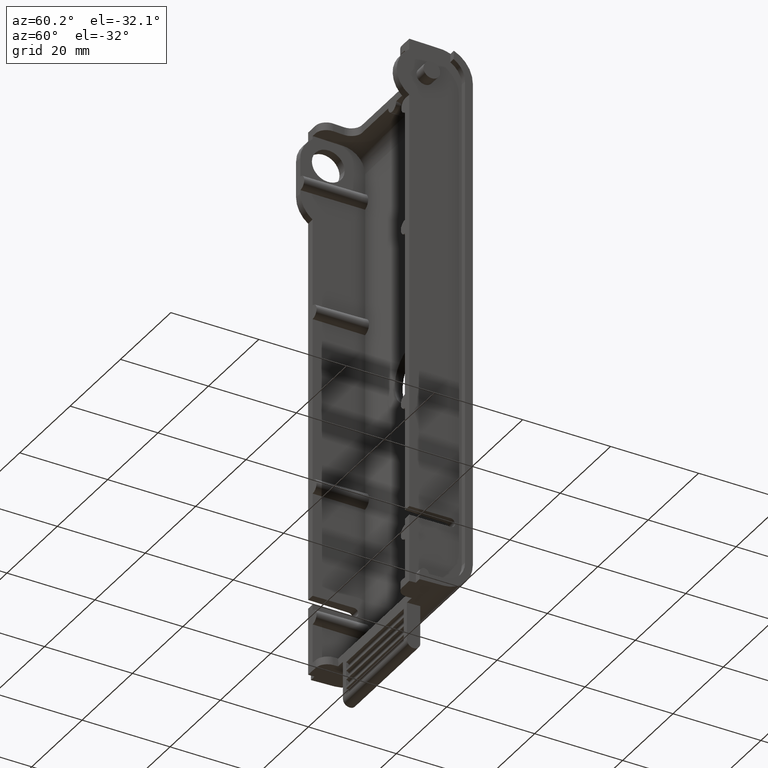
[diagram: clean part render]
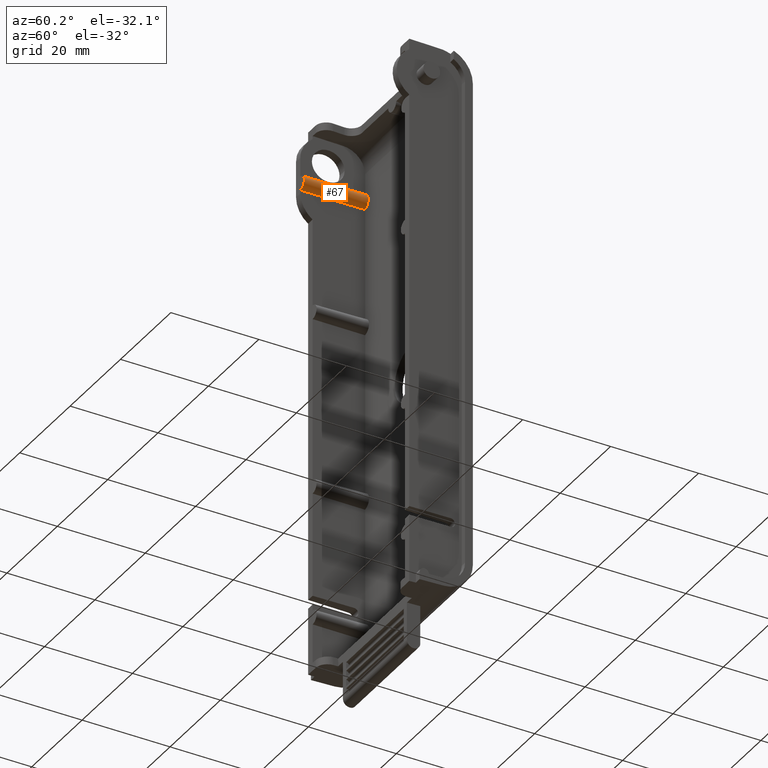
[diagram: same view with one face highlighted and labeled with its STEP entity id]
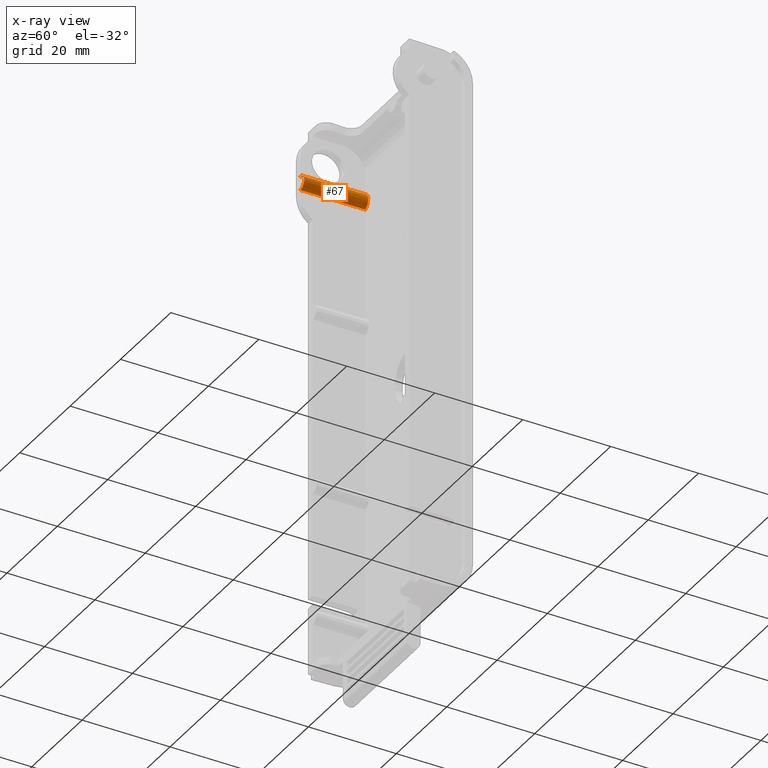
[diagram: x-ray of the same camera — body ghosted, the highlighted face saturated]
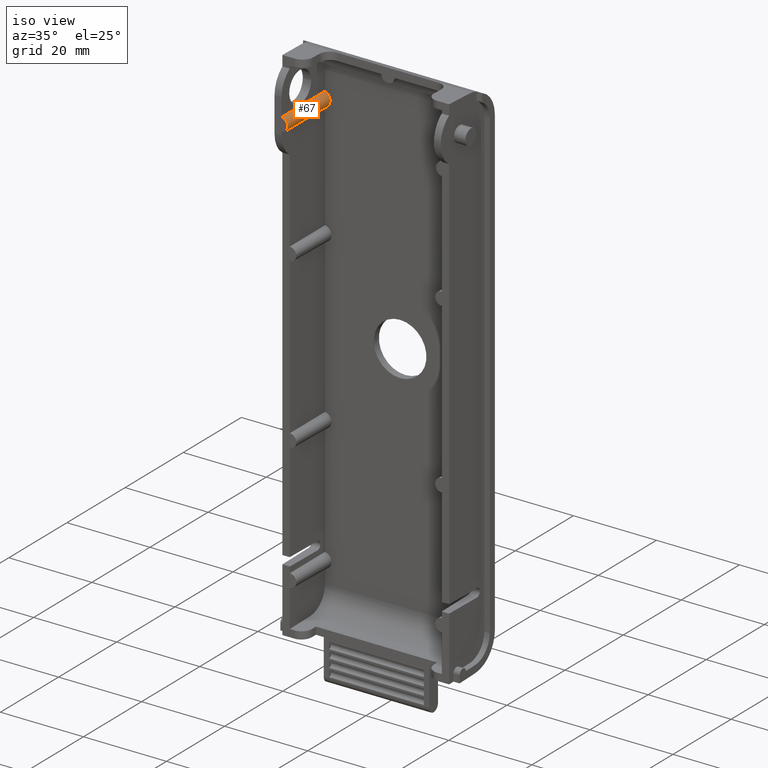
[diagram: same view with one face highlighted and labeled with its STEP entity id]
A machine part, auxiliary view. The second image highlights one B-rep face of the part: STEP entity #67.
The next image is the same camera in x-ray: the body ghosted, the highlighted face saturated — about 0% of this face is hidden behind the body in this view.
A second angle (iso view) of the same face is appended — the face is thin or edge-on in the first view.
In plain terms, the highlighted conical surface has half-angle 1 deg.
Its self-contained STEP definition (entity closure, byte-faithful):
#52 = ORIENTED_EDGE ( 'NONE', *, *, #597, .F. ) ;
#67 = ADVANCED_FACE ( 'NONE', ( #818 ), #1487, .T. ) ;
#249 = CARTESIAN_POINT ( 'NONE',  ( -0.7160159745057069800, 0.2655334032662460800, 2.017238102561494700 ) ) ;
#331 = DIRECTION ( 'NONE',  ( 0.9998476951563912700, 0.01745240643728349400, 0.0000000000000000000 ) ) ;
#433 = CIRCLE ( 'NONE', #2962, 0.06250000000000013900 ) ;
#597 = EDGE_CURVE ( 'NONE', #2536, #2922, #1199, .T. ) ;
#818 = FACE_OUTER_BOUND ( 'NONE', #2167, .T. ) ;
#898 = CARTESIAN_POINT ( 'NONE',  ( -0.7225418668505243500, -0.1083347187748126400, 1.887610721778530300 ) ) ;
#921 = CARTESIAN_POINT ( 'NONE',  ( -0.6343070558001396900, 0.4649999999999999700, 1.908608527929689400 ) ) ;
#1087 = ORIENTED_EDGE ( 'NONE', *, *, #3192, .F. ) ;
#1199 =( BOUNDED_CURVE ( )  B_SPLINE_CURVE ( 3, ( #4193, #2239, #249, #2558 ),
 .UNSPECIFIED., .F., .F. ) 
 B_SPLINE_CURVE_WITH_KNOTS ( ( 4, 4 ),
 ( 4.241310679826605100, 4.504606413436551500 ),
 .UNSPECIFIED. ) 
 CURVE ( )  GEOMETRIC_REPRESENTATION_ITEM ( )  RATIONAL_B_SPLINE_CURVE ( ( 1.000000000000000000, 0.9942312851570305200, 0.9942312851570305200, 1.000000000000000000 ) ) 
 REPRESENTATION_ITEM ( '' )  );
#1226 = EDGE_CURVE ( 'NONE', #3115, #1797, #3350, .T. ) ;
#1487 = CONICAL_SURFACE ( 'NONE', #3733, 0.06250000000000013900, 0.01745329251994333400 ) ;
#1574 = CARTESIAN_POINT ( 'NONE',  ( -0.7125342721087089000, 0.4650000000000000800, 2.018509417297156700 ) ) ;
#1647 = CARTESIAN_POINT ( 'NONE',  ( -0.7160159745057069800, 0.2655334032662489700, 1.882761897438507200 ) ) ;
#1797 = VERTEX_POINT ( 'NONE', #898 ) ;
#1895 = CARTESIAN_POINT ( 'NONE',  ( -0.7262598974035495700, -0.1083996172395207800, 1.950000000000000800 ) ) ;
#1927 =( BOUNDED_CURVE ( )  B_SPLINE_CURVE ( 3, ( #1574, #2248, #921, #3218 ),
 .UNSPECIFIED., .F., .F. ) 
 B_SPLINE_CURVE_WITH_KNOTS ( ( 4, 4 ),
 ( 1.904536264446898600, 4.378649042732700300 ),
 .UNSPECIFIED. ) 
 CURVE ( )  GEOMETRIC_REPRESENTATION_ITEM ( )  RATIONAL_B_SPLINE_CURVE ( ( 1.000000000000000000, 0.5517192622092108600, 0.5517192622092108600, 1.000000000000000000 ) ) 
 REPRESENTATION_ITEM ( '' )  );
#1956 = DIRECTION ( 'NONE',  ( -0.01745240643728355700, 0.9998476951563912700, -1.050550738454938900E-016 ) ) ;
#2167 = EDGE_LOOP ( 'NONE', ( #3861, #1087, #52, #3764 ) ) ;
#2204 = CARTESIAN_POINT ( 'NONE',  ( -0.7125342721087089000, 0.4650000000000000800, 1.881490582702844500 ) ) ;
#2239 = CARTESIAN_POINT ( 'NONE',  ( -0.7193711947283452100, 0.07331296544856319400, 2.015186219474513600 ) ) ;
#2240 = DIRECTION ( 'NONE',  ( 0.9998476951563912700, 0.01745240643728349400, 0.0000000000000000000 ) ) ;
#2248 = CARTESIAN_POINT ( 'NONE',  ( -0.6343070558001396900, 0.4649999999999999700, 1.991391472070312300 ) ) ;
#2431 = CARTESIAN_POINT ( 'NONE',  ( -0.7225418668505247900, -0.1083347187748126000, 2.012389278221471400 ) ) ;
#2536 = VERTEX_POINT ( 'NONE', #2431 ) ;
#2558 = CARTESIAN_POINT ( 'NONE',  ( -0.7125342721087089000, 0.4650000000000000800, 2.018509417297156700 ) ) ;
#2922 = VERTEX_POINT ( 'NONE', #4044 ) ;
#2962 = AXIS2_PLACEMENT_3D ( 'NONE', #1895, #4204, #2240 ) ;
#3115 = VERTEX_POINT ( 'NONE', #2204 ) ;
#3192 = EDGE_CURVE ( 'NONE', #2922, #3115, #1927, .T. ) ;
#3218 = CARTESIAN_POINT ( 'NONE',  ( -0.7125342721087089000, 0.4650000000000000800, 1.881490582702844500 ) ) ;
#3350 =( BOUNDED_CURVE ( )  B_SPLINE_CURVE ( 3, ( #3953, #1647, #3614, #4280 ),
 .UNSPECIFIED., .F., .F. ) 
 B_SPLINE_CURVE_WITH_KNOTS ( ( 4, 4 ),
 ( 1.778578893743033800, 2.041874627352979800 ),
 .UNSPECIFIED. ) 
 CURVE ( )  GEOMETRIC_REPRESENTATION_ITEM ( )  RATIONAL_B_SPLINE_CURVE ( ( 1.000000000000000000, 0.9942312851570305200, 0.9942312851570305200, 1.000000000000000000 ) ) 
 REPRESENTATION_ITEM ( '' )  );
#3487 = CARTESIAN_POINT ( 'NONE',  ( -0.7262598974035495700, -0.1083996172395207800, 1.950000000000000800 ) ) ;
#3512 = EDGE_CURVE ( 'NONE', #1797, #2536, #433, .T. ) ;
#3614 = CARTESIAN_POINT ( 'NONE',  ( -0.7193711947283452100, 0.07331296544856633100, 1.884813780525488500 ) ) ;
#3733 = AXIS2_PLACEMENT_3D ( 'NONE', #3487, #1956, #331 ) ;
#3764 = ORIENTED_EDGE ( 'NONE', *, *, #3512, .F. ) ;
#3861 = ORIENTED_EDGE ( 'NONE', *, *, #1226, .F. ) ;
#3953 = CARTESIAN_POINT ( 'NONE',  ( -0.7125342721087089000, 0.4650000000000000800, 1.881490582702844500 ) ) ;
#4044 = CARTESIAN_POINT ( 'NONE',  ( -0.7125342721087089000, 0.4650000000000000800, 2.018509417297156700 ) ) ;
#4193 = CARTESIAN_POINT ( 'NONE',  ( -0.7225418668505247900, -0.1083347187748126000, 2.012389278221471400 ) ) ;
#4204 = DIRECTION ( 'NONE',  ( 0.01745240643728355700, -0.9998476951563912700, 1.050550738454938900E-016 ) ) ;
#4280 = CARTESIAN_POINT ( 'NONE',  ( -0.7225418668505243500, -0.1083347187748126400, 1.887610721778530300 ) ) ;